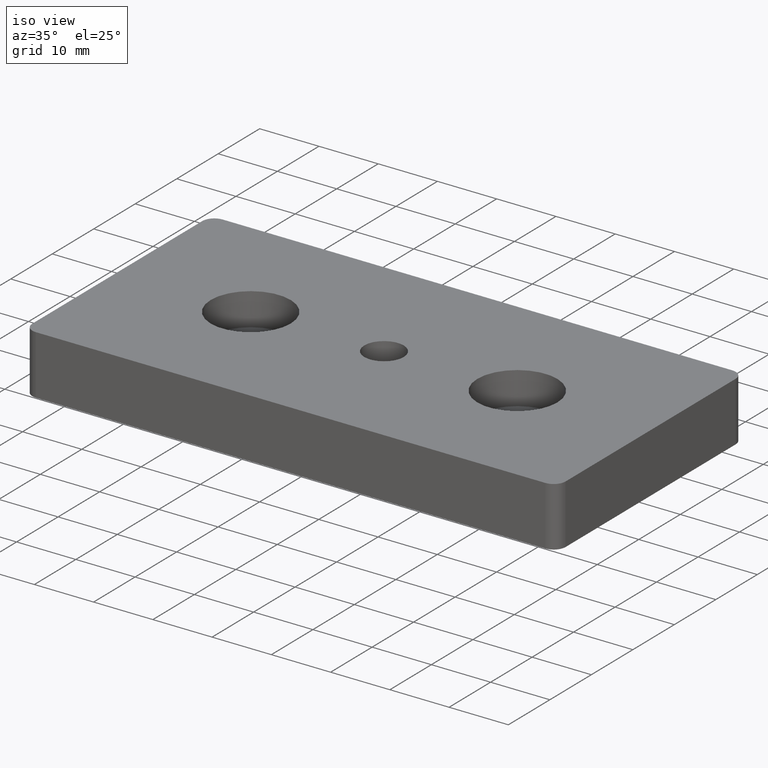
[diagram: clean part render]
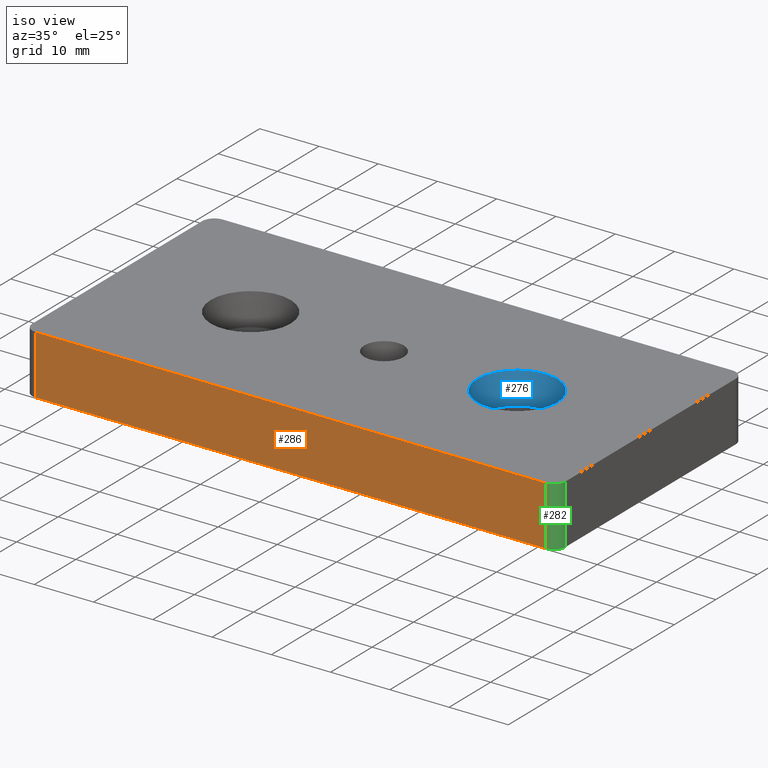
[diagram: same view with three faces highlighted in distinct colors, each labeled with its STEP entity id]
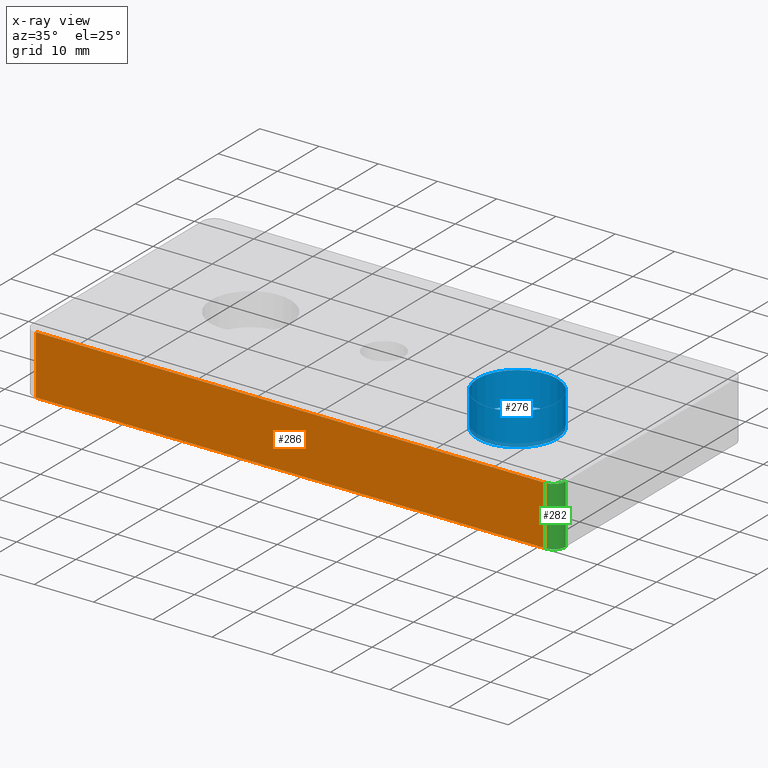
[diagram: x-ray of the same camera — body ghosted, the three highlighted faces saturated]
A machine part, iso view with three faces highlighted in distinct colors.
The next image is the same camera in x-ray (body ghosted, the three faces saturated) — at least one of them is partly hidden behind the body in this view.
Their STEP definitions:

[orange] entity #286 — the highlighted planar face has unit normal (0, -1, 0).
#17=LINE('',#449,#33);
#21=LINE('',#463,#37);
#25=LINE('',#476,#41);
#31=LINE('',#489,#47);
#33=VECTOR('',#368,10.);
#37=VECTOR('',#380,86.);
#41=VECTOR('',#394,10.);
#47=VECTOR('',#410,86.);
#54=PLANE('',#323);
#84=FACE_OUTER_BOUND('',#111,.T.);
#111=EDGE_LOOP('',(#247,#248,#249,#250));
#144=VERTEX_POINT('',#442);
#147=VERTEX_POINT('',#447);
#153=VERTEX_POINT('',#461);
#157=VERTEX_POINT('',#474);
#173=EDGE_CURVE('',#147,#144,#17,.T.);
#180=EDGE_CURVE('',#153,#147,#21,.T.);
#186=EDGE_CURVE('',#157,#153,#25,.T.);
#193=EDGE_CURVE('',#144,#157,#31,.T.);
#247=ORIENTED_EDGE('',*,*,#173,.F.);
#248=ORIENTED_EDGE('',*,*,#180,.F.);
#249=ORIENTED_EDGE('',*,*,#186,.F.);
#250=ORIENTED_EDGE('',*,*,#193,.F.);
#286=ADVANCED_FACE('',(#84),#54,.T.);
#323=AXIS2_PLACEMENT_3D('',#488,#408,#409);
#368=DIRECTION('',(0.,0.,1.));
#380=DIRECTION('',(-1.,0.,0.));
#394=DIRECTION('',(0.,0.,-1.));
#408=DIRECTION('center_axis',(0.,-1.,0.));
#409=DIRECTION('ref_axis',(1.,0.,0.));
#410=DIRECTION('',(1.,0.,0.));
#442=CARTESIAN_POINT('',(-43.,-22.5,10.));
#447=CARTESIAN_POINT('',(-43.,-22.5,0.));
#449=CARTESIAN_POINT('',(-43.,-22.5,0.));
#461=CARTESIAN_POINT('',(43.,-22.5,0.));
#463=CARTESIAN_POINT('',(45.,-22.5,0.));
#474=CARTESIAN_POINT('',(43.,-22.5,10.));
#476=CARTESIAN_POINT('',(43.,-22.5,0.));
#488=CARTESIAN_POINT('Origin',(-45.,-22.5,0.));
#489=CARTESIAN_POINT('',(45.,-22.5,10.));

[blue] entity #276 — the highlighted cylindrical surface (bore or boss wall) has radius 6.75 mm, axis along (0, 0, 1).
#61=FACE_BOUND('',#97,.T.);
#74=FACE_OUTER_BOUND('',#96,.T.);
#96=EDGE_LOOP('',(#204));
#97=EDGE_LOOP('',(#205));
#122=CIRCLE('',#301,6.75);
#124=CIRCLE('',#304,6.75);
#140=VERTEX_POINT('',#431);
#142=VERTEX_POINT('',#436);
#166=EDGE_CURVE('',#140,#140,#122,.T.);
#168=EDGE_CURVE('',#142,#142,#124,.T.);
#204=ORIENTED_EDGE('',*,*,#168,.F.);
#205=ORIENTED_EDGE('',*,*,#166,.F.);
#265=CYLINDRICAL_SURFACE('',#303,6.75);
#276=ADVANCED_FACE('',(#74,#61),#265,.F.);
#301=AXIS2_PLACEMENT_3D('',#432,#349,#350);
#303=AXIS2_PLACEMENT_3D('',#435,#353,#354);
#304=AXIS2_PLACEMENT_3D('',#437,#355,#356);
#349=DIRECTION('center_axis',(0.,0.,1.));
#350=DIRECTION('ref_axis',(1.,0.,0.));
#353=DIRECTION('center_axis',(0.,0.,1.));
#354=DIRECTION('ref_axis',(1.,0.,0.));
#355=DIRECTION('center_axis',(0.,0.,-1.));
#356=DIRECTION('ref_axis',(1.,0.,0.));
#431=CARTESIAN_POINT('',(29.25,0.,4.5));
#432=CARTESIAN_POINT('Origin',(22.5,0.,4.5));
#435=CARTESIAN_POINT('Origin',(22.5,0.,7.25));
#436=CARTESIAN_POINT('',(29.25,0.,10.));
#437=CARTESIAN_POINT('Origin',(22.5,0.,10.));

[green] entity #282 — the highlighted cylindrical surface (edge-blend (fillet) strip) has radius 2 mm, axis along (0, 0, 1).
#25=LINE('',#476,#41);
#26=LINE('',#477,#42);
#41=VECTOR('',#394,10.);
#42=VECTOR('',#395,10.);
#80=FACE_OUTER_BOUND('',#107,.T.);
#107=EDGE_LOOP('',(#231,#232,#233,#234));
#130=CIRCLE('',#313,2.);
#132=CIRCLE('',#318,2.);
#152=VERTEX_POINT('',#459);
#153=VERTEX_POINT('',#461);
#156=VERTEX_POINT('',#473);
#157=VERTEX_POINT('',#474);
#179=EDGE_CURVE('',#153,#152,#130,.T.);
#185=EDGE_CURVE('',#156,#157,#132,.T.);
#186=EDGE_CURVE('',#157,#153,#25,.T.);
#187=EDGE_CURVE('',#152,#156,#26,.T.);
#231=ORIENTED_EDGE('',*,*,#185,.T.);
#232=ORIENTED_EDGE('',*,*,#186,.T.);
#233=ORIENTED_EDGE('',*,*,#179,.T.);
#234=ORIENTED_EDGE('',*,*,#187,.T.);
#269=CYLINDRICAL_SURFACE('',#317,2.);
#282=ADVANCED_FACE('',(#80),#269,.T.);
#313=AXIS2_PLACEMENT_3D('',#462,#378,#379);
#317=AXIS2_PLACEMENT_3D('',#472,#390,#391);
#318=AXIS2_PLACEMENT_3D('',#475,#392,#393);
#378=DIRECTION('center_axis',(0.,0.,1.));
#379=DIRECTION('ref_axis',(0.707106781186546,-0.707106781186549,0.));
#390=DIRECTION('center_axis',(0.,0.,1.));
#391=DIRECTION('ref_axis',(0.707106781186546,-0.707106781186549,0.));
#392=DIRECTION('center_axis',(0.,0.,-1.));
#393=DIRECTION('ref_axis',(0.707106781186546,-0.707106781186549,0.));
#394=DIRECTION('',(0.,0.,-1.));
#395=DIRECTION('',(0.,0.,1.));
#459=CARTESIAN_POINT('',(45.,-20.5,0.));
#461=CARTESIAN_POINT('',(43.,-22.5,0.));
#462=CARTESIAN_POINT('Origin',(43.,-20.5,0.));
#472=CARTESIAN_POINT('Origin',(43.,-20.5,0.));
#473=CARTESIAN_POINT('',(45.,-20.5,10.));
#474=CARTESIAN_POINT('',(43.,-22.5,10.));
#475=CARTESIAN_POINT('Origin',(43.,-20.5,10.));
#476=CARTESIAN_POINT('',(43.,-22.5,0.));
#477=CARTESIAN_POINT('',(45.,-20.5,0.));